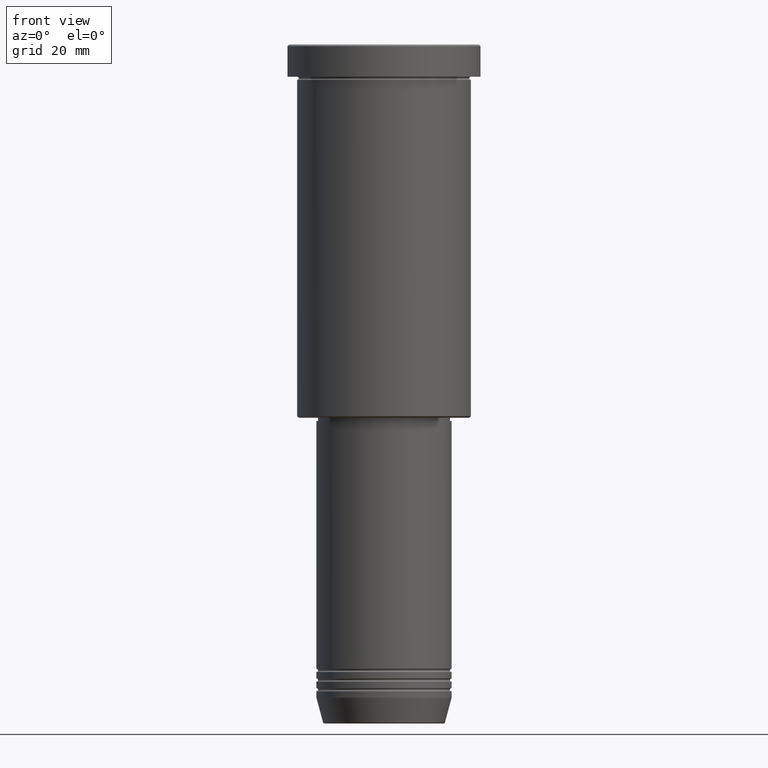
[diagram: clean part render]
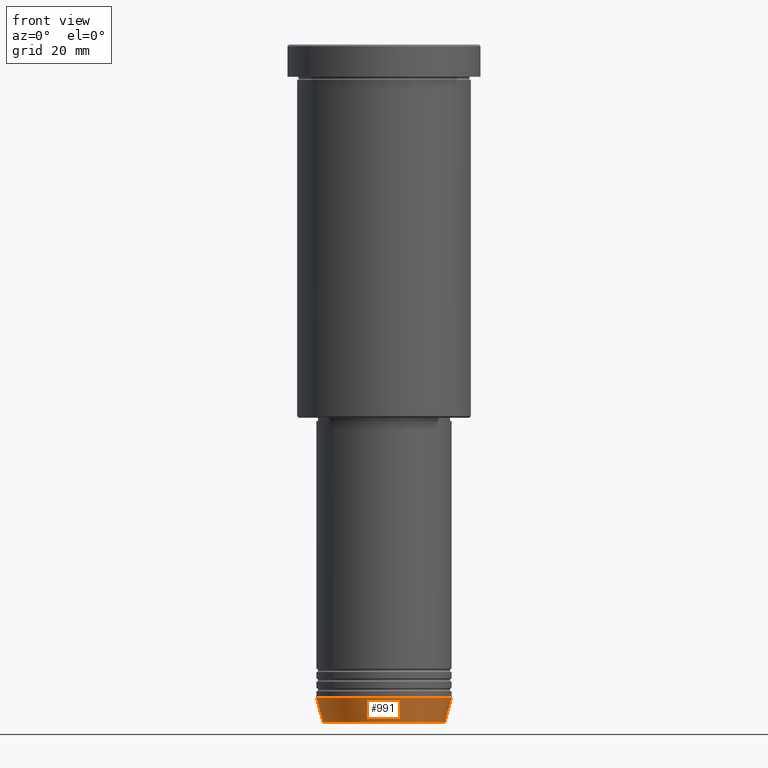
[diagram: same view with one face highlighted and labeled with its STEP entity id]
A machine part, front view. The second image highlights one B-rep face of the part: STEP entity #991.
In plain terms, the highlighted conical surface has half-angle 15 deg.
Its self-contained STEP definition (entity closure, byte-faithful):
#27 = DIRECTION ( 'NONE',  ( 1.000000000000000000, 0.000000000000000000, 0.000000000000000000 ) ) ;
#66 = CONICAL_SURFACE ( 'NONE', #1074, 21.00000000000000000, 0.2617993877991499629 ) ;
#110 = VERTEX_POINT ( 'NONE', #657 ) ;
#144 = EDGE_CURVE ( 'NONE', #110, #1156, #151, .T. ) ;
#151 = CIRCLE ( 'NONE', #300, 18.95570587970606269 ) ;
#182 = CARTESIAN_POINT ( 'NONE',  ( 0.000000000000000000, 0.000000000000000000, -203.0000000000000000 ) ) ;
#197 = DIRECTION ( 'NONE',  ( -0.000000000000000000, -0.000000000000000000, 1.000000000000000000 ) ) ;
#206 = VERTEX_POINT ( 'NONE', #423 ) ;
#236 = CARTESIAN_POINT ( 'NONE',  ( 21.00000000000000000, 0.000000000000000000, -203.0000000000000000 ) ) ;
#251 = DIRECTION ( 'NONE',  ( 0.2588190451025212391, 0.000000000000000000, 0.9659258262890680902 ) ) ;
#287 = AXIS2_PLACEMENT_3D ( 'NONE', #182, #432, #441 ) ;
#300 = AXIS2_PLACEMENT_3D ( 'NONE', #484, #197, #560 ) ;
#332 = LINE ( 'NONE', #708, #589 ) ;
#336 = LINE ( 'NONE', #957, #647 ) ;
#358 = CARTESIAN_POINT ( 'NONE',  ( 18.95570587970606269, 0.000000000000000000, -210.6294095225512990 ) ) ;
#380 = VERTEX_POINT ( 'NONE', #236 ) ;
#423 = CARTESIAN_POINT ( 'NONE',  ( -21.00000000000000000, 2.571758278209441661E-15, -203.0000000000000000 ) ) ;
#432 = DIRECTION ( 'NONE',  ( -0.000000000000000000, -0.000000000000000000, 1.000000000000000000 ) ) ;
#441 = DIRECTION ( 'NONE',  ( 1.000000000000000000, 0.000000000000000000, 0.000000000000000000 ) ) ;
#484 = CARTESIAN_POINT ( 'NONE',  ( 0.000000000000000000, 0.000000000000000000, -210.6294095225512990 ) ) ;
#504 = DIRECTION ( 'NONE',  ( -0.000000000000000000, -0.000000000000000000, 1.000000000000000000 ) ) ;
#560 = DIRECTION ( 'NONE',  ( 1.000000000000000000, 0.000000000000000000, 0.000000000000000000 ) ) ;
#589 = VECTOR ( 'NONE', #251, 1000.000000000000114 ) ;
#593 = CARTESIAN_POINT ( 'NONE',  ( 0.000000000000000000, 0.000000000000000000, -203.0000000000000000 ) ) ;
#647 = VECTOR ( 'NONE', #809, 1000.000000000000114 ) ;
#657 = CARTESIAN_POINT ( 'NONE',  ( -18.95570587970606269, 2.446581365662755730E-15, -210.6294095225512990 ) ) ;
#708 = CARTESIAN_POINT ( 'NONE',  ( 21.00000000000000000, 0.000000000000000000, -203.0000000000000000 ) ) ;
#730 = EDGE_CURVE ( 'NONE', #206, #380, #1034, .T. ) ;
#744 = ORIENTED_EDGE ( 'NONE', *, *, #885, .T. ) ;
#809 = DIRECTION ( 'NONE',  ( -0.2588190451025212391, 3.169619151431771721E-17, 0.9659258262890680902 ) ) ;
#885 = EDGE_CURVE ( 'NONE', #1156, #380, #332, .T. ) ;
#957 = CARTESIAN_POINT ( 'NONE',  ( -21.00000000000000000, 2.571758278209441661E-15, -203.0000000000000000 ) ) ;
#959 = EDGE_CURVE ( 'NONE', #110, #206, #336, .T. ) ;
#991 = ADVANCED_FACE ( 'NONE', ( #1051 ), #66, .T. ) ;
#1034 = CIRCLE ( 'NONE', #287, 21.00000000000000000 ) ;
#1051 = FACE_OUTER_BOUND ( 'NONE', #1165, .T. ) ;
#1054 = ORIENTED_EDGE ( 'NONE', *, *, #730, .F. ) ;
#1074 = AXIS2_PLACEMENT_3D ( 'NONE', #593, #504, #27 ) ;
#1076 = ORIENTED_EDGE ( 'NONE', *, *, #144, .T. ) ;
#1156 = VERTEX_POINT ( 'NONE', #358 ) ;
#1164 = ORIENTED_EDGE ( 'NONE', *, *, #959, .F. ) ;
#1165 = EDGE_LOOP ( 'NONE', ( #1164, #1076, #744, #1054 ) ) ;